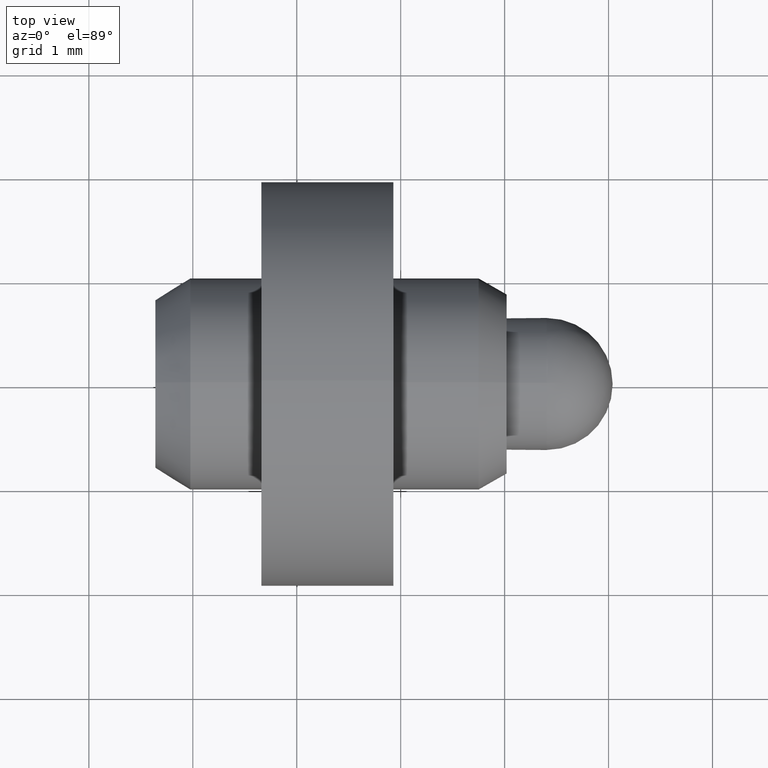
[diagram: clean part render]
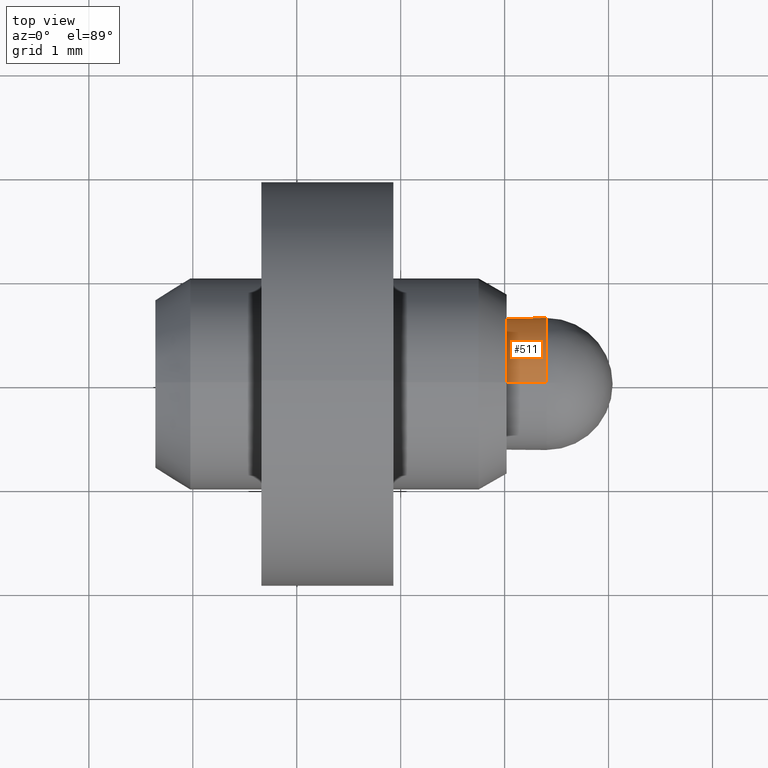
[diagram: same view with one face highlighted and labeled with its STEP entity id]
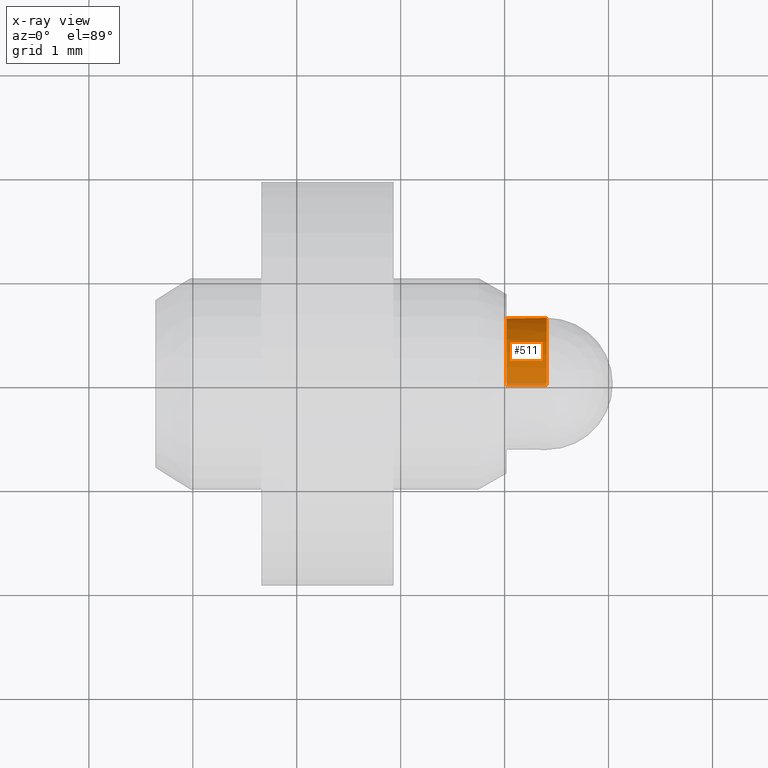
[diagram: x-ray of the same camera — body ghosted, the highlighted face saturated]
A machine part, top view. The second image highlights one B-rep face of the part: STEP entity #511.
The next image is the same camera in x-ray: the body ghosted, the highlighted face saturated — about 4% of this face is hidden behind the body in this view.
In plain terms, the highlighted cylindrical surface (partial cylindrical patch) has radius 0.635 mm, axis along (-1, -0, -0).
Its self-contained STEP definition (entity closure, byte-faithful):
#4 = AXIS2_PLACEMENT_3D ( 'NONE', #273, #315, #193 ) ;
#46 = ORIENTED_EDGE ( 'NONE', *, *, #498, .T. ) ;
#55 = ORIENTED_EDGE ( 'NONE', *, *, #69, .F. ) ;
#59 = EDGE_LOOP ( 'NONE', ( #46, #404, #244, #55, #448 ) ) ;
#67 = DIRECTION ( 'NONE',  ( 0.0000000000000000000, 0.0000000000000000000, 1.000000000000000000 ) ) ;
#69 = EDGE_CURVE ( 'NONE', #411, #381, #416, .T. ) ;
#80 = CIRCLE ( 'NONE', #287, 0.6350000000000000100 ) ;
#95 = VECTOR ( 'NONE', #504, 1000.000000000000000 ) ;
#108 = CARTESIAN_POINT ( 'NONE',  ( 1.404500637947216700, 0.6350000000000001200, 0.0000000000000000000 ) ) ;
#135 = VERTEX_POINT ( 'NONE', #108 ) ;
#146 = CARTESIAN_POINT ( 'NONE',  ( 1.404500637947216700, 0.0000000000000000000, 0.0000000000000000000 ) ) ;
#166 = VERTEX_POINT ( 'NONE', #238 ) ;
#172 = DIRECTION ( 'NONE',  ( -1.000000000000000000, -0.0000000000000000000, -0.0000000000000000000 ) ) ;
#182 = CIRCLE ( 'NONE', #4, 0.6350000000000001200 ) ;
#185 = DIRECTION ( 'NONE',  ( -1.000000000000000000, -0.0000000000000000000, -0.0000000000000000000 ) ) ;
#186 = EDGE_CURVE ( 'NONE', #411, #135, #182, .T. ) ;
#193 = DIRECTION ( 'NONE',  ( 0.0000000000000000000, 0.0000000000000000000, 1.000000000000000000 ) ) ;
#207 = LINE ( 'NONE', #338, #95 ) ;
#226 = CARTESIAN_POINT ( 'NONE',  ( -2.360499362052783200, 0.0000000000000000000, 0.6350000000000001200 ) ) ;
#238 = CARTESIAN_POINT ( 'NONE',  ( 1.019500637947216700, 7.776507174585692900E-017, -0.6350000000000000100 ) ) ;
#244 = ORIENTED_EDGE ( 'NONE', *, *, #347, .F. ) ;
#257 = DIRECTION ( 'NONE',  ( 0.0000000000000000000, 0.0000000000000000000, 1.000000000000000000 ) ) ;
#273 = CARTESIAN_POINT ( 'NONE',  ( 1.404500637947216700, 0.0000000000000000000, 0.0000000000000000000 ) ) ;
#282 = VERTEX_POINT ( 'NONE', #486 ) ;
#283 = CYLINDRICAL_SURFACE ( 'NONE', #353, 0.6350000000000001200 ) ;
#287 = AXIS2_PLACEMENT_3D ( 'NONE', #475, #185, #67 ) ;
#292 = CIRCLE ( 'NONE', #337, 0.6350000000000001200 ) ;
#315 = DIRECTION ( 'NONE',  ( -1.000000000000000000, -0.0000000000000000000, -0.0000000000000000000 ) ) ;
#333 = CARTESIAN_POINT ( 'NONE',  ( -2.360499362052783200, 0.0000000000000000000, 0.0000000000000000000 ) ) ;
#335 = DIRECTION ( 'NONE',  ( 0.0000000000000000000, 0.0000000000000000000, 1.000000000000000000 ) ) ;
#337 = AXIS2_PLACEMENT_3D ( 'NONE', #146, #471, #335 ) ;
#338 = CARTESIAN_POINT ( 'NONE',  ( -2.360499362052783200, 7.776507174585694100E-017, -0.6350000000000001200 ) ) ;
#347 = EDGE_CURVE ( 'NONE', #381, #166, #80, .T. ) ;
#353 = AXIS2_PLACEMENT_3D ( 'NONE', #333, #172, #257 ) ;
#363 = CARTESIAN_POINT ( 'NONE',  ( 1.019500637947216700, 0.0000000000000000000, 0.6350000000000000100 ) ) ;
#364 = FACE_OUTER_BOUND ( 'NONE', #59, .T. ) ;
#381 = VERTEX_POINT ( 'NONE', #363 ) ;
#404 = ORIENTED_EDGE ( 'NONE', *, *, #462, .T. ) ;
#411 = VERTEX_POINT ( 'NONE', #482 ) ;
#416 = LINE ( 'NONE', #226, #433 ) ;
#433 = VECTOR ( 'NONE', #515, 1000.000000000000000 ) ;
#448 = ORIENTED_EDGE ( 'NONE', *, *, #186, .T. ) ;
#462 = EDGE_CURVE ( 'NONE', #282, #166, #207, .T. ) ;
#471 = DIRECTION ( 'NONE',  ( -1.000000000000000000, -0.0000000000000000000, -0.0000000000000000000 ) ) ;
#475 = CARTESIAN_POINT ( 'NONE',  ( 1.019500637947216700, 0.0000000000000000000, 0.0000000000000000000 ) ) ;
#482 = CARTESIAN_POINT ( 'NONE',  ( 1.404500637947216700, 0.0000000000000000000, 0.6350000000000001200 ) ) ;
#486 = CARTESIAN_POINT ( 'NONE',  ( 1.404500637947216700, 7.776507174585694100E-017, -0.6350000000000001200 ) ) ;
#498 = EDGE_CURVE ( 'NONE', #135, #282, #292, .T. ) ;
#504 = DIRECTION ( 'NONE',  ( -1.000000000000000000, -0.0000000000000000000, -0.0000000000000000000 ) ) ;
#511 = ADVANCED_FACE ( 'NONE', ( #364 ), #283, .T. ) ;
#515 = DIRECTION ( 'NONE',  ( -1.000000000000000000, -0.0000000000000000000, -0.0000000000000000000 ) ) ;